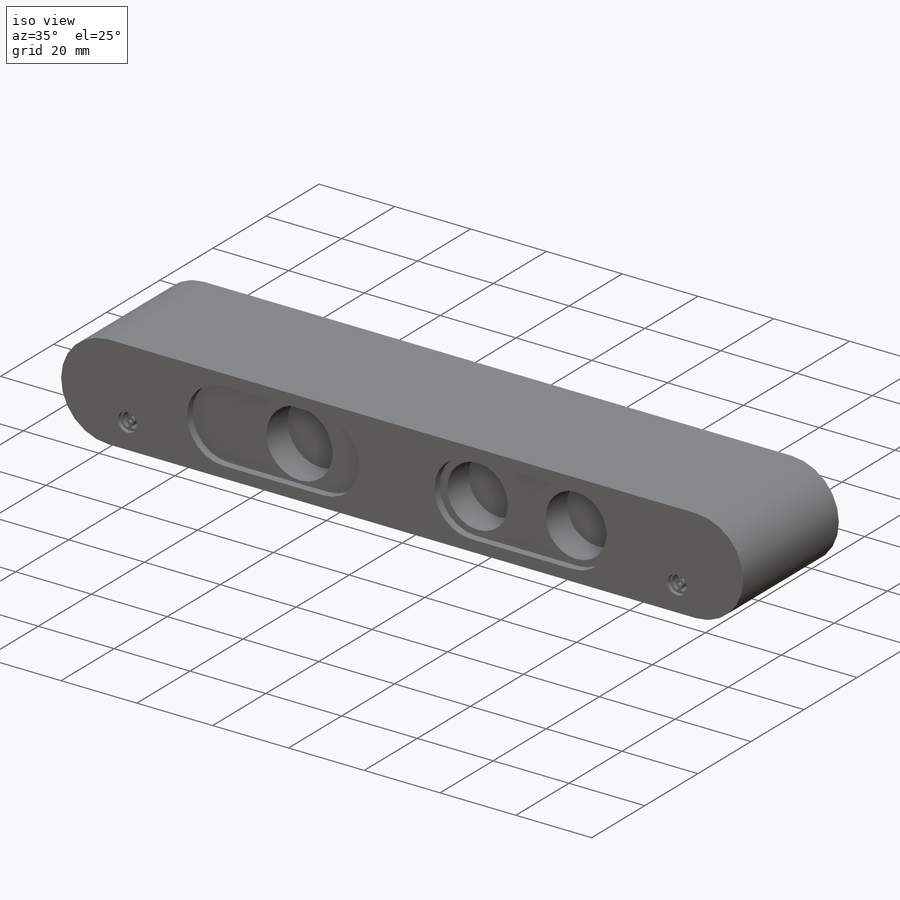
[diagram: iso view]
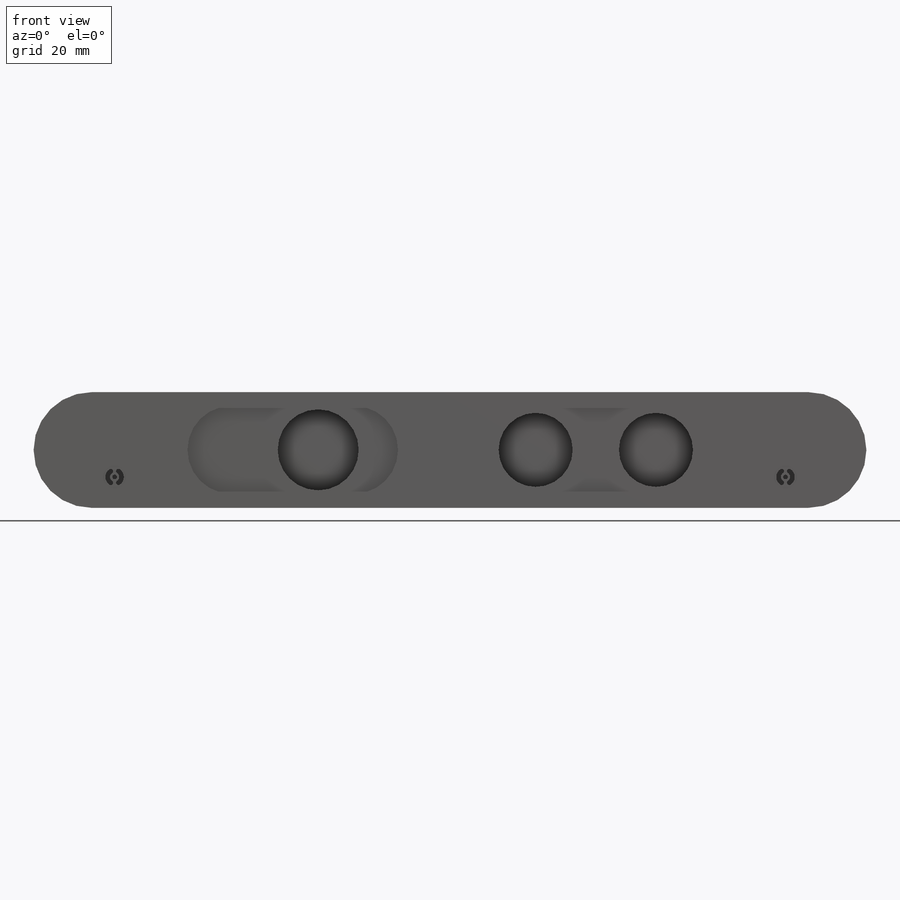
[diagram: front view]
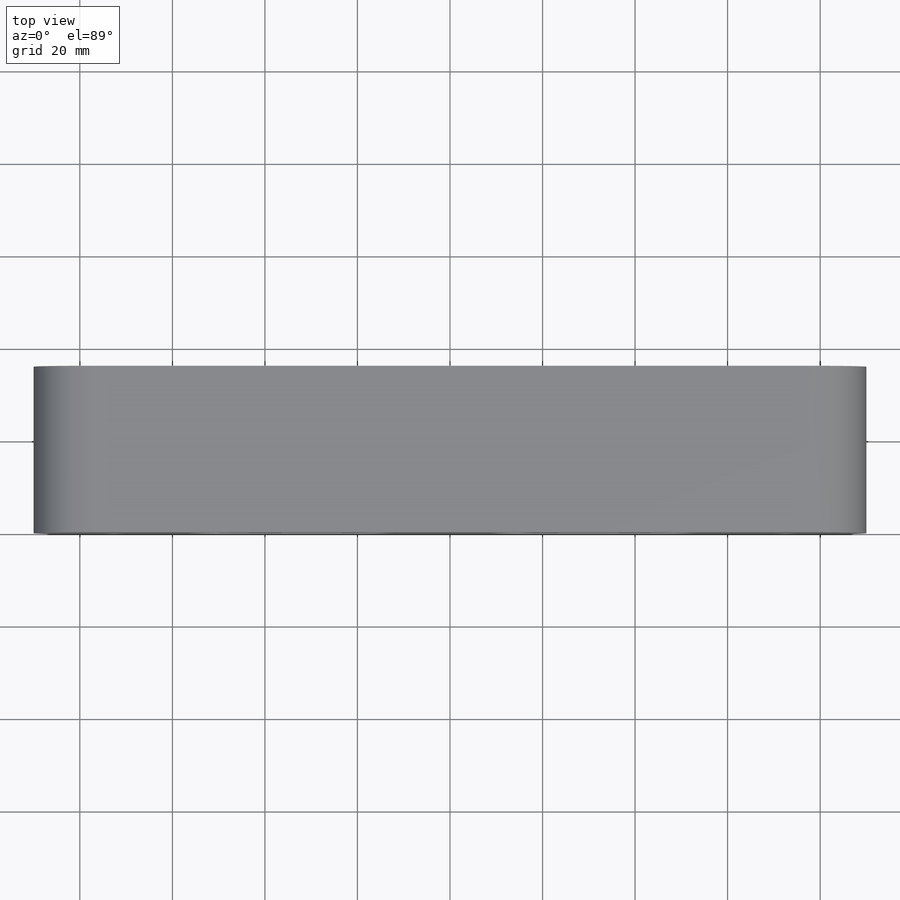
[diagram: top view]
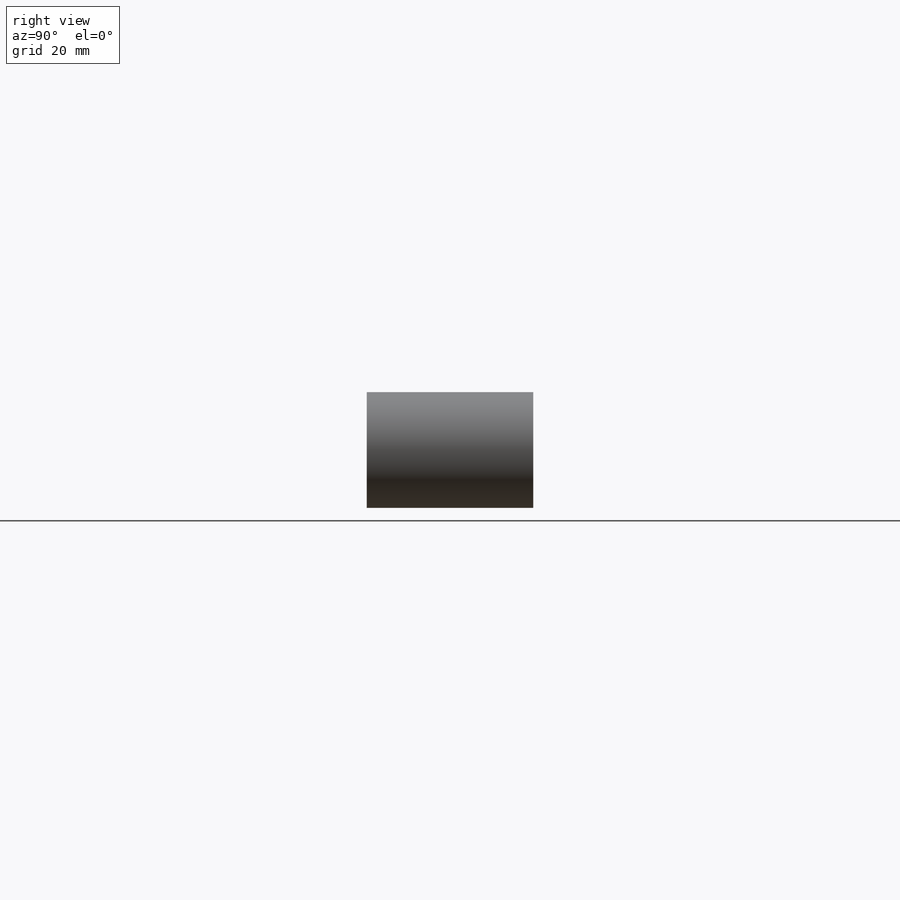
[diagram: right view]
SOLIDWORKS PART (.sldprt)
format: sldprt  version: not decoded by parser v0  size: 338,432 bytes
history: native  units: mm
features: sketch x6, cut_extrude x4, material x1, extrude x1 (+13 scaffold rows collapsed)
feature tree (25):
  scaffold x13  (default folders/planes/origin — collapsed)
  material  "Material <not specified>"
  sketch  "Sketch1"  dims[c1.D1=12.5mm c1.D3=12.5mm c1.D4=~11.698301mm c2.D1=~135.804208mm c2.D2=155.0mm c2.D3=0.0mm]
  extrude  "Boss-Extrude1"  Depth=36mm
  sketch  "Sketch3"  dims[D1=17.5mm D4=16.0mm D7=16.0mm D2=28.5mm D3=0.0mm D5=47.0mm D6=73.0mm D8=0.0mm D9=0.0mm]
  cut_extrude  "Cut-Extrude1"  Depth=10mm
  sketch  "Sketch4"  dims[c1.D1=9.5mm c1.D2=9.5mm c1.D6=9.5mm c2.D2=~50.003358mm c2.D3=26.5mm c2.D4=34.0mm c2.D5=27.0mm c2.D6=31.5mm]
  cut_extrude  "Cut-Extrude2"  Depth=2mm
  sketch  "Sketch5"  dims[D1=5.0mm D2=5.0mm D3=72.5mm D4=72.5mm]
  cut_extrude  "Cut-Extrude3"  Depth=1mm
  sketch  "Sketch6"  dims[c1.D1=1.0mm c1.D2=1.0mm c1.D5=0.5mm c1.D6=1.5mm c1.D9=0.5mm c1.D11=1.0mm c1.D14=0.5mm c1.D18=0.5mm c1.D3=0.0mm c1.D4=1.5mm c2.D6=2.5mm c2.D7=0.0mm c2.D8=2.5mm c2.D10=1.5mm c2.D12=0.0mm c2.D13=1.5mm c2.D15=2.5mm c2.D16=0.0mm c2.D17=2.5mm c2.D19=1.5mm c2.D20=72.5mm c2.D21=0.0mm]
  cut_extrude  "Cut-Extrude4"  Depth=5mm
  sketch  "Sketch7"  dims[D1=3.8mm D2=15.0mm D3=10.5mm D4=3.0mm D5=3.8mm D6=15.0mm D7=3.0mm D8=10.5mm]
decode coverage: 11 of 11 modeling features carry decoded parameters
note: ~ marks probable driven/reference dimensions
note: suppression state not decoded; provenance and decode notes live in map.json
